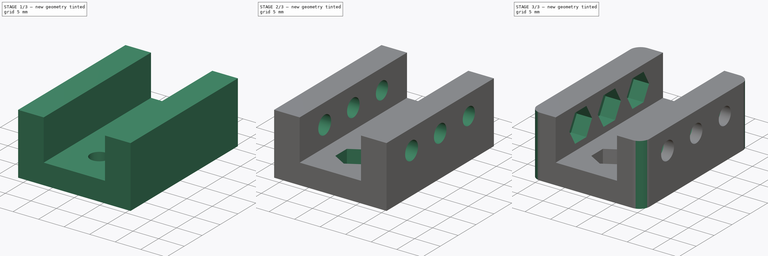
[diagram: build sequence overview — one tinted view per stage of 3, left to right]
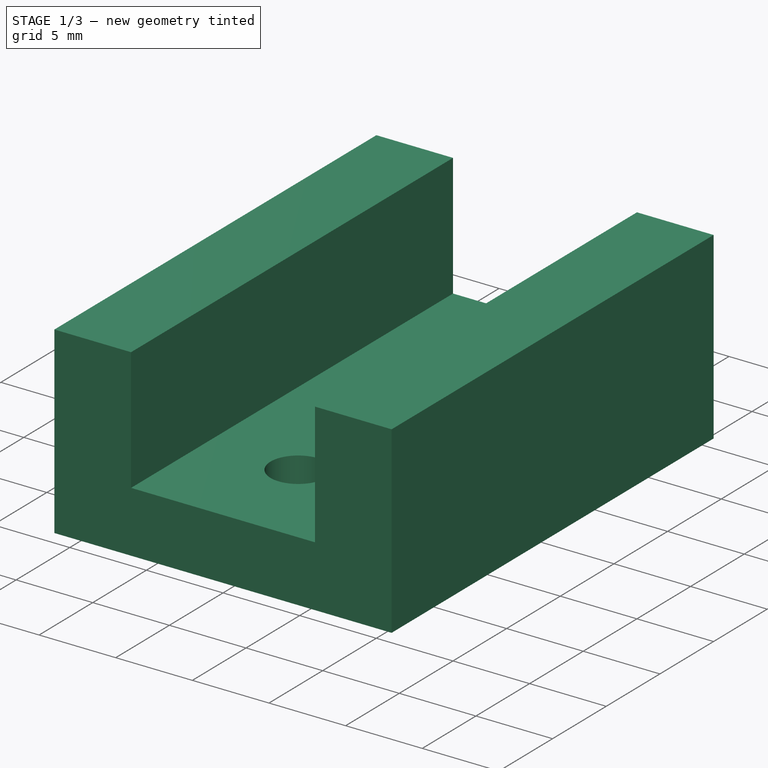
[diagram: stage 1 of 3 — iso view after this stage's code; geometry added in this stage tinted green]
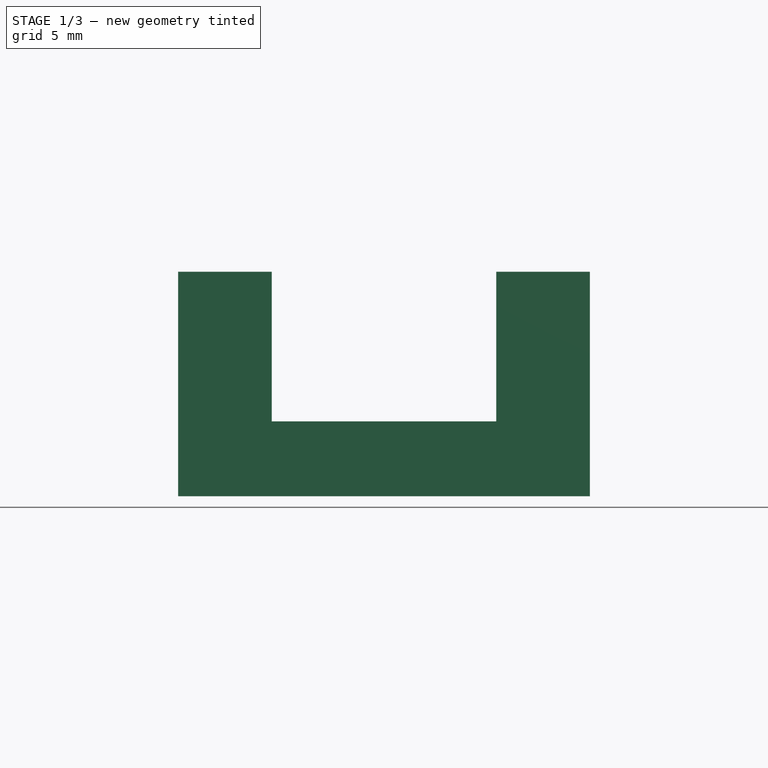
[diagram: stage 1 of 3 — front view after this stage's code; geometry added in this stage tinted green]
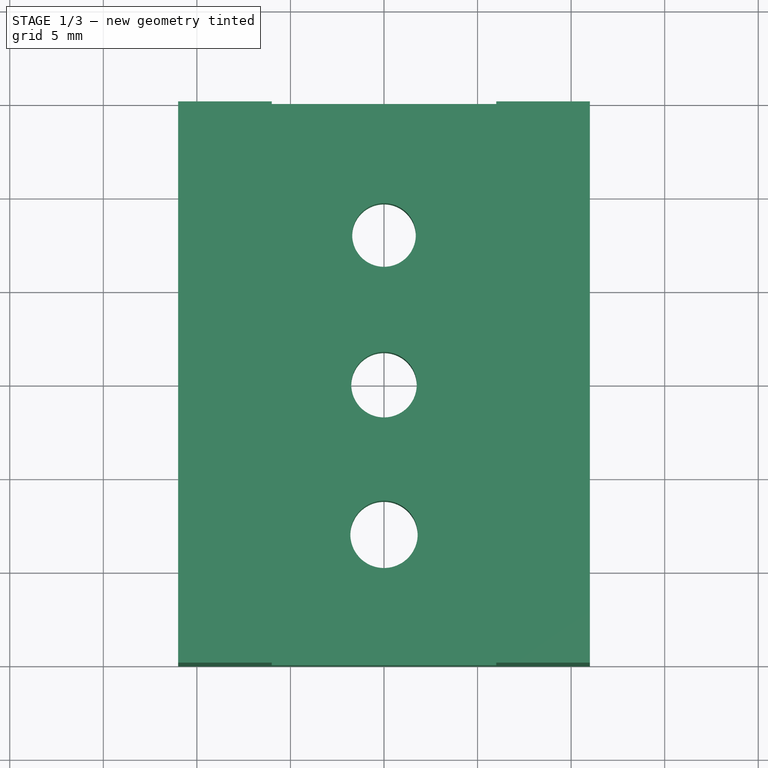
[diagram: stage 1 of 3 — top view after this stage's code; geometry added in this stage tinted green]
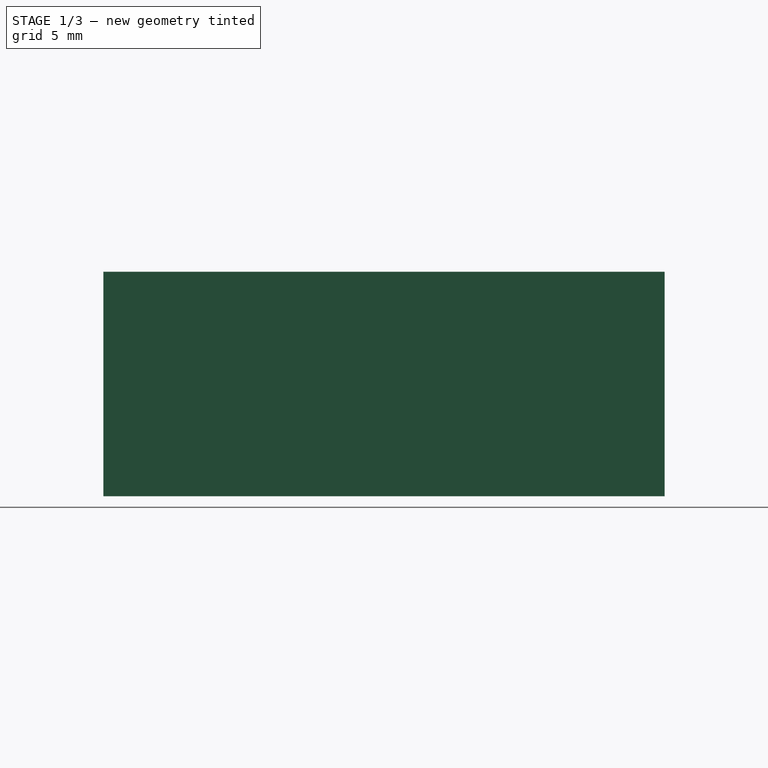
[diagram: stage 1 of 3 — right view after this stage's code; geometry added in this stage tinted green]
FCSTD DOCUMENT  (FreeCAD 0.19R24291 (Git))
Label: HexFaceTest
License: All rights reserved
LicenseURL: http://en.wikipedia.org/wiki/All_rights_reserved
objects: Sketcher::SketchObject×7, PartDesign::Pocket×6, PartDesign::Pad×1, Spreadsheet::Sheet×1, PartDesign::Fillet×1, PartDesign::Body×1
note: 24 computed .brp shape members not serialized (recipe doc carries the construction recipe); baked Part::Feature solids carry a one-line shape summary decoded from their .brp

FEATURE [Sketcher::SketchObject] Sketch
  FullyConstrained = true
  MapMode = 5
  Support = -> [XY_Plane]
  sketch-geometry (4):
    g0: LineSegment StartX=-11 StartY=15 StartZ=0 EndX=11 EndY=15 EndZ=0
    g1: LineSegment StartX=11 StartY=15 StartZ=0 EndX=11 EndY=-15 EndZ=0
    g2: LineSegment StartX=11 StartY=-15 StartZ=0 EndX=-11 EndY=-15 EndZ=0
    g3: LineSegment StartX=-11 StartY=-15 StartZ=0 EndX=-11 EndY=15 EndZ=0
  constraints (11):
    c: Coincident(g0,g1)
    c: Coincident(g1,g2)
    c: Coincident(g2,g3)
    c: Coincident(g3,g0)
    c: Horizontal(g0)
    c: Horizontal(g2)
    c: Vertical(g1)
    c: Vertical(g3)
    c: Symmetric(g0,g1,g-1)
    c: Distance(g2) = 22
    c: Distance(g3) = 30
FEATURE [PartDesign::Pad] Pad
  Direction = (1,1,1)
  Length = 12
  Length2 = 100
  Profile = -> Sketch
  Type = 0
FEATURE [Sketcher::SketchObject] Sketch001
  FullyConstrained = true
  Placement = pos=(0,-15,0) rot=(1,0,0;1.5708rad)
  sketch-geometry (5):
    g0: LineSegment StartX=-6 StartY=12 StartZ=0 EndX=6 EndY=12 EndZ=0
    g1: LineSegment StartX=6 StartY=12 StartZ=0 EndX=6 EndY=4 EndZ=0
    g2: LineSegment StartX=6 StartY=4 StartZ=0 EndX=-6 EndY=4 EndZ=0
    g3: LineSegment StartX=-6 StartY=4 StartZ=0 EndX=-6 EndY=12 EndZ=0
    g4: GeomPoint X=0 Y=4 Z=0
  constraints (13):
    c: Coincident(g0,g1)
    c: Coincident(g1,g2)
    c: Coincident(g2,g3)
    c: Coincident(g3,g0)
    c: Horizontal(g0)
    c: Horizontal(g2)
    c: Vertical(g1)
    c: Vertical(g3)
    c: PointOnObject(g4,g-2)
    c: Symmetric(g2,g1,g4)
    c: DistanceY(g4) = 4
    c: Distance(g3) = 8
    c: Distance(g0) = 12
FEATURE [Sketcher::SketchObject] Sketch002
  FullyConstrained = true
  Placement = pos=(0,9e-16,4) rot=(0,0,1;0rad)
  expr: Constraints[5] = Spreadsheet.h2
  expr: Constraints[6] = Spreadsheet.h3
  expr: Constraints[4] = Spreadsheet.h1
  sketch-geometry (3):
    g0: Circle CenterX=0 CenterY=4e-16 CenterZ=0 NormalX=0 NormalY=0 NormalZ=1 AngleXU=0 Radius=1.75
    g1: Circle CenterX=0 CenterY=8 CenterZ=0 NormalX=0 NormalY=0 NormalZ=1 AngleXU=0 Radius=1.7
    g2: Circle CenterX=0 CenterY=-8 CenterZ=0 NormalX=0 NormalY=0 NormalZ=1 AngleXU=0 Radius=1.8
  constraints (7):
    c: Coincident(g0,g-1)
    c: PointOnObject(g2,g-2)
    c: Symmetric(g1,g2,g0)
    c: DistanceY(g1) = 8
    c: Radius(g1) = 1.7
    c: Radius(g0) = 1.75
    c: Radius(g2) = 1.8
FEATURE [Sketcher::SketchObject] Sketch003
  FullyConstrained = true
  Placement = pos=(12,0,0) rot=(0.57735,0.57735,0.57735;2.0944rad)
  expr: Constraints[9] = Spreadsheet.h3
  expr: Constraints[8] = Spreadsheet.h2
  expr: Constraints[1] = Spreadsheet.h1
  sketch-geometry (4):
    g0: Circle CenterX=0 CenterY=8 CenterZ=0 NormalX=0 NormalY=0 NormalZ=1 AngleXU=0 Radius=1.75
    g1: Circle CenterX=8 CenterY=8 CenterZ=0 NormalX=0 NormalY=0 NormalZ=1 AngleXU=0 Radius=1.7
    g2: Circle CenterX=-8 CenterY=8 CenterZ=0 NormalX=0 NormalY=0 NormalZ=1 AngleXU=0 Radius=1.8
    g3: LineSegment StartX=-8 StartY=8 StartZ=0 EndX=0 EndY=8 EndZ=0
  constraints (10):
    c: Symmetric(g1,g2,g0)
    c: Radius(g1) = 1.7
    c: PointOnObject(g0,g-2)
    c: Coincident(g3,g2)
    c: Coincident(g3,g0)
    c: Horizontal(g3)
    c: DistanceY(g0) = 8
    c: Distance(g3) = 8
    c: Radius(g0) = 1.75
    c: Radius(g2) = 1.8
FEATURE [Sketcher::SketchObject] Sketch005
  FullyConstrained = true
  Placement = pos=(0,9e-16,4) rot=(0,0,1;0rad)
  expr: Constraints[57] = Spreadsheet.s1
  expr: Constraints[56] = Spreadsheet.s2
  expr: Constraints[55] = Spreadsheet.s3
  sketch-geometry (23):
    g0: LineSegment StartX=2.7 StartY=6.44115 StartZ=0 EndX=2.7 EndY=9.55885 EndZ=0
    g1: LineSegment StartX=2.7 StartY=9.55885 StartZ=0 EndX=-1.8421e-12 EndY=11.1177 EndZ=0
    g2: LineSegment StartX=-1.8421e-12 StartY=11.1177 StartZ=0 EndX=-2.7 EndY=9.55885 EndZ=0
    g3: LineSegment StartX=-2.7 StartY=9.55885 StartZ=0 EndX=-2.7 EndY=6.44115 EndZ=0
    g4: LineSegment StartX=-2.7 StartY=6.44115 StartZ=0 EndX=-7.621e-13 EndY=4.88231 EndZ=0
    g5: LineSegment StartX=-7.621e-13 StartY=4.88231 StartZ=0 EndX=2.7 EndY=6.44115 EndZ=0
    g6: Circle CenterX=0 CenterY=8 CenterZ=0 NormalX=0 NormalY=0 NormalZ=1 AngleXU=0 Radius=3.11769
    g7: LineSegment StartX=2.75 StartY=-1.58771 StartZ=0 EndX=2.75 EndY=1.58771 EndZ=0
    g8: LineSegment StartX=2.75 StartY=1.58771 StartZ=0 EndX=-1.4229e-12 EndY=3.17543 EndZ=0
    g9: LineSegment StartX=-1.4229e-12 StartY=3.17543 StartZ=0 EndX=-2.75 EndY=1.58771 EndZ=0
    g10: LineSegment StartX=-2.75 StartY=1.58771 StartZ=0 EndX=-2.75 EndY=-1.58771 EndZ=0
    g11: LineSegment StartX=-2.75 StartY=-1.58771 StartZ=0 EndX=-1.4224e-12 EndY=-3.17543 EndZ=0
    g12: LineSegment StartX=-1.4224e-12 StartY=-3.17543 StartZ=0 EndX=2.75 EndY=-1.58771 EndZ=0
    g13: Circle CenterX=0 CenterY=0 CenterZ=0 NormalX=0 NormalY=0 NormalZ=1 AngleXU=0 Radius=3.17543
    g14: LineSegment StartX=2.8 StartY=-9.61658 StartZ=0 EndX=2.8 EndY=-6.38342 EndZ=0
    g15: LineSegment StartX=2.8 StartY=-6.38342 StartZ=0 EndX=6.62e-14 EndY=-4.76684 EndZ=0
    g16: LineSegment StartX=6.62e-14 StartY=-4.76684 StartZ=0 EndX=-2.8 EndY=-6.38342 EndZ=0
    g17: LineSegment StartX=-2.8 StartY=-6.38342 StartZ=0 EndX=-2.8 EndY=-9.61658 EndZ=0
    g18: LineSegment StartX=-2.8 StartY=-9.61658 StartZ=0 EndX=-6.66e-14 EndY=-11.2332 EndZ=0
    g19: LineSegment StartX=-6.66e-14 StartY=-11.2332 StartZ=0 EndX=2.8 EndY=-9.61658 EndZ=0
    g20: Circle CenterX=0 CenterY=-8 CenterZ=0 NormalX=0 NormalY=0 NormalZ=1 AngleXU=0 Radius=3.23316
    g21: LineSegment StartX=0 StartY=0 StartZ=0 EndX=0 EndY=8 EndZ=0
    g22: LineSegment StartX=0 StartY=0 StartZ=0 EndX=0 EndY=-8 EndZ=0
  constraints (54):
    c: Coincident(g0,g1)
    c: Coincident(g1,g2)
    c: Coincident(g2,g3)
    c: Coincident(g3,g4)
    c: Coincident(g4,g5)
    c: Coincident(g5,g0)
    c: Equal(g0, g1-g5) x5
    c: PointOnObject(g0,g6)
    c: PointOnObject(g1,g6)
    c: PointOnObject(g2,g6)
    c: PointOnObject(g3,g6)
    c: PointOnObject(g4,g6)
    c: PointOnObject(g5,g6)
    c: Coincident(g7,g8)
    c: Coincident(g8,g9)
    c: Coincident(g9,g10)
    c: Coincident(g10,g11)
    c: Coincident(g11,g12)
    c: Coincident(g12,g7)
    c: Equal(g7, g8-g12) x5
    c: PointOnObject(g7,g13)
    c: PointOnObject(g8,g13)
    c: PointOnObject(g9,g13)
    c: PointOnObject(g10,g13)
    c: PointOnObject(g11,g13)
    c: PointOnObject(g12,g13)
    c: Coincident(g13,g-1)
    c: Coincident(g14,g15)
    c: Coincident(g15,g16)
    c: Coincident(g16,g17)
    c: Coincident(g17,g18)
    c: Coincident(g18,g19)
    c: Coincident(g19,g14)
    c: Equal(g14, g15-g19) x5
    c: PointOnObject(g14,g20)
    c: PointOnObject(g15,g20)
    c: PointOnObject(g16,g20)
    c: PointOnObject(g17,g20)
    c: PointOnObject(g18,g20)
    c: PointOnObject(g19,g20)
    c: Vertical(g17)
    c: Vertical(g10)
    c: Vertical(g3)
    c: DistanceX(g17,g14) = 5.6
    c: DistanceX(g10,g7) = 5.5
    c: DistanceX(g3,g0) = 5.4
    c: Coincident(g21,g-1)
    c: Coincident(g21,g6)
    c: Vertical(g21)
    c: Coincident(g22,g-1)
    c: Coincident(g22,g20)
    c: Vertical(g22)
    c: Equal(g22,g21)
    c: Distance(g21) = 8
FEATURE [Sketcher::SketchObject] Sketch006
  FullyConstrained = true
  Placement = pos=(6,0,0) rot=(0.57735,-0.57735,-0.57735;2.0944rad)
  expr: Constraints[54] = Spreadsheet.s1
  expr: Constraints[55] = Spreadsheet.s2
  expr: Constraints[56] = Spreadsheet.s3
  sketch-geometry (23):
    g0: LineSegment StartX=-9.55885 StartY=5.3 StartZ=0 EndX=-6.44115 EndY=5.3 EndZ=0
    g1: LineSegment StartX=-6.44115 StartY=5.3 StartZ=0 EndX=-4.88231 EndY=8 EndZ=0
    g2: LineSegment StartX=-4.88231 StartY=8 StartZ=0 EndX=-6.44115 EndY=10.7 EndZ=0
    g3: LineSegment StartX=-6.44115 StartY=10.7 StartZ=0 EndX=-9.55885 EndY=10.7 EndZ=0
    g4: LineSegment StartX=-9.55885 StartY=10.7 StartZ=0 EndX=-11.1177 EndY=8 EndZ=0
    g5: LineSegment StartX=-11.1177 StartY=8 StartZ=0 EndX=-9.55885 EndY=5.3 EndZ=0
    g6: Circle CenterX=-8 CenterY=8 CenterZ=0 NormalX=0 NormalY=0 NormalZ=1 AngleXU=0 Radius=3.11769
    g7: LineSegment StartX=-3.17543 StartY=8 StartZ=0 EndX=-1.58771 EndY=5.25 EndZ=0
    g8: LineSegment StartX=-1.58771 StartY=5.25 StartZ=0 EndX=1.58771 EndY=5.25 EndZ=0
    g9: LineSegment StartX=1.58771 StartY=5.25 StartZ=0 EndX=3.17543 EndY=8 EndZ=0
    g10: LineSegment StartX=3.17543 StartY=8 StartZ=0 EndX=1.58771 EndY=10.75 EndZ=0
    g11: LineSegment StartX=1.58771 StartY=10.75 StartZ=0 EndX=-1.58771 EndY=10.75 EndZ=0
    g12: LineSegment StartX=-1.58771 StartY=10.75 StartZ=0 EndX=-3.17543 EndY=8 EndZ=0
    g13: Circle CenterX=0 CenterY=8 CenterZ=0 NormalX=0 NormalY=0 NormalZ=1 AngleXU=0 Radius=3.17543
    g14: LineSegment StartX=4.76684 StartY=8 StartZ=0 EndX=6.38342 EndY=5.2 EndZ=0
    g15: LineSegment StartX=6.38342 StartY=5.2 StartZ=0 EndX=9.61658 EndY=5.2 EndZ=0
    g16: LineSegment StartX=9.61658 StartY=5.2 StartZ=0 EndX=11.2332 EndY=8 EndZ=0
    g17: LineSegment StartX=11.2332 StartY=8 StartZ=0 EndX=9.61658 EndY=10.8 EndZ=0
    g18: LineSegment StartX=9.61658 StartY=10.8 StartZ=0 EndX=6.38342 EndY=10.8 EndZ=0
    g19: LineSegment StartX=6.38342 StartY=10.8 StartZ=0 EndX=4.76684 EndY=8 EndZ=0
    g20: Circle CenterX=8 CenterY=8 CenterZ=0 NormalX=0 NormalY=0 NormalZ=1 AngleXU=0 Radius=3.23316
    g21: LineSegment StartX=-8 StartY=8 StartZ=0 EndX=0 EndY=8 EndZ=0
    g22: LineSegment StartX=0 StartY=8 StartZ=0 EndX=8 EndY=8 EndZ=0
  constraints (55):
    c: Coincident(g0,g1)
    c: Coincident(g1,g2)
    c: Coincident(g2,g3)
    c: Coincident(g3,g4)
    c: Coincident(g4,g5)
    c: Coincident(g5,g0)
    c: Equal(g0, g1-g5) x5
    c: PointOnObject(g0,g6)
    c: PointOnObject(g1,g6)
    c: PointOnObject(g2,g6)
    c: PointOnObject(g3,g6)
    c: PointOnObject(g4,g6)
    c: PointOnObject(g5,g6)
    c: Coincident(g7,g8)
    c: Coincident(g8,g9)
    c: Coincident(g9,g10)
    c: Coincident(g10,g11)
    c: Coincident(g11,g12)
    c: Coincident(g12,g7)
    c: Equal(g7, g8-g12) x5
    c: PointOnObject(g7,g13)
    c: PointOnObject(g8,g13)
    c: PointOnObject(g9,g13)
    c: PointOnObject(g10,g13)
    c: PointOnObject(g11,g13)
    c: PointOnObject(g12,g13)
    c: Coincident(g14,g15)
    c: Coincident(g15,g16)
    c: Coincident(g16,g17)
    c: Coincident(g17,g18)
    c: Coincident(g18,g19)
    c: Coincident(g19,g14)
    c: Equal(g14, g15-g19) x5
    c: PointOnObject(g14,g20)
    c: PointOnObject(g15,g20)
    c: PointOnObject(g16,g20)
    c: PointOnObject(g17,g20)
    c: PointOnObject(g18,g20)
    c: PointOnObject(g19,g20)
    c: Horizontal(g3)
    c: Horizontal(g11)
    c: Horizontal(g18)
    c: DistanceY(g0,g3) = 5.4
    c: DistanceY(g7,g11) = 5.5
    c: DistanceY(g14,g18) = 5.6
    c: Coincident(g21,g6)
    c: Coincident(g21,g13)
    c: Horizontal(g21)
    c: Coincident(g22,g13)
    c: Coincident(g22,g20)
    c: Horizontal(g22)
    c: Equal(g22,g21)
    c: PointOnObject(g13,g-2)
    c: Distance(g22) = 8
    c: DistanceY(g13) = 8
FEATURE [Sketcher::SketchObject] Sketch007
  FullyConstrained = true
  Placement = pos=(-6,0,0) rot=(0.57735,0.57735,0.57735;2.0944rad)
  expr: Constraints[54] = Spreadsheet.s3
  expr: Constraints[55] = Spreadsheet.s2
  expr: Constraints[56] = Spreadsheet.s1
  sketch-geometry (23):
    g0: LineSegment StartX=3.23316 StartY=8 StartZ=0 EndX=1.61658 EndY=10.8 EndZ=0
    g1: LineSegment StartX=1.61658 StartY=10.8 StartZ=0 EndX=-1.61658 EndY=10.8 EndZ=0
    g2: LineSegment StartX=-1.61658 StartY=10.8 StartZ=0 EndX=-3.23316 EndY=8 EndZ=0
    g3: LineSegment StartX=-3.23316 StartY=8 StartZ=0 EndX=-1.61658 EndY=5.2 EndZ=0
    g4: LineSegment StartX=-1.61658 StartY=5.2 StartZ=0 EndX=1.61658 EndY=5.2 EndZ=0
    g5: LineSegment StartX=1.61658 StartY=5.2 StartZ=0 EndX=3.23316 EndY=8 EndZ=0
    g6: Circle CenterX=0 CenterY=8 CenterZ=0 NormalX=0 NormalY=0 NormalZ=1 AngleXU=0 Radius=3.23316
    g7: LineSegment StartX=-4.82457 StartY=8 StartZ=0 EndX=-6.41229 EndY=10.75 EndZ=0
    g8: LineSegment StartX=-6.41229 StartY=10.75 StartZ=0 EndX=-9.58771 EndY=10.75 EndZ=0
    g9: LineSegment StartX=-9.58771 StartY=10.75 StartZ=0 EndX=-11.1754 EndY=8 EndZ=0
    g10: LineSegment StartX=-11.1754 StartY=8 StartZ=0 EndX=-9.58771 EndY=5.25 EndZ=0
    g11: LineSegment StartX=-9.58771 StartY=5.25 StartZ=0 EndX=-6.41229 EndY=5.25 EndZ=0
    g12: LineSegment StartX=-6.41229 StartY=5.25 StartZ=0 EndX=-4.82457 EndY=8 EndZ=0
    g13: Circle CenterX=-8 CenterY=8 CenterZ=0 NormalX=0 NormalY=0 NormalZ=1 AngleXU=0 Radius=3.17543
    g14: LineSegment StartX=11.1177 StartY=8 StartZ=0 EndX=9.55885 EndY=10.7 EndZ=0
    g15: LineSegment StartX=9.55885 StartY=10.7 StartZ=0 EndX=6.44115 EndY=10.7 EndZ=0
    g16: LineSegment StartX=6.44115 StartY=10.7 StartZ=0 EndX=4.88231 EndY=8 EndZ=0
    g17: LineSegment StartX=4.88231 StartY=8 StartZ=0 EndX=6.44115 EndY=5.3 EndZ=0
    g18: LineSegment StartX=6.44115 StartY=5.3 StartZ=0 EndX=9.55885 EndY=5.3 EndZ=0
    g19: LineSegment StartX=9.55885 StartY=5.3 StartZ=0 EndX=11.1177 EndY=8 EndZ=0
    g20: Circle CenterX=8 CenterY=8 CenterZ=0 NormalX=0 NormalY=0 NormalZ=1 AngleXU=0 Radius=3.11769
    g21: LineSegment StartX=-8 StartY=8 StartZ=0 EndX=0 EndY=8 EndZ=0
    g22: LineSegment StartX=0 StartY=8 StartZ=0 EndX=8 EndY=8 EndZ=0
  constraints (55):
    c: Coincident(g0,g1)
    c: Coincident(g1,g2)
    c: Coincident(g2,g3)
    c: Coincident(g3,g4)
    c: Coincident(g4,g5)
    c: Coincident(g5,g0)
    c: Equal(g0, g1-g5) x5
    c: PointOnObject(g0,g6)
    c: PointOnObject(g1,g6)
    c: PointOnObject(g2,g6)
    c: PointOnObject(g3,g6)
    c: PointOnObject(g4,g6)
    c: PointOnObject(g5,g6)
    c: Coincident(g7,g8)
    c: Coincident(g8,g9)
    c: Coincident(g9,g10)
    c: Coincident(g10,g11)
    c: Coincident(g11,g12)
    c: Coincident(g12,g7)
    c: Equal(g7, g8-g12) x5
    c: PointOnObject(g7,g13)
    c: PointOnObject(g8,g13)
    c: PointOnObject(g9,g13)
    c: PointOnObject(g10,g13)
    c: PointOnObject(g11,g13)
    c: PointOnObject(g12,g13)
    c: Coincident(g14,g15)
    c: Coincident(g15,g16)
    c: Coincident(g16,g17)
    c: Coincident(g17,g18)
    c: Coincident(g18,g19)
    c: Coincident(g19,g14)
    c: Equal(g14, g15-g19) x5
    c: PointOnObject(g14,g20)
    c: PointOnObject(g15,g20)
    c: PointOnObject(g16,g20)
    c: PointOnObject(g17,g20)
    c: PointOnObject(g18,g20)
    c: PointOnObject(g19,g20)
    c: Horizontal(g15)
    c: Horizontal(g8)
    c: Horizontal(g1)
    c: DistanceY(g3,g1) = 5.6
    c: DistanceY(g10,g8) = 5.5
    c: DistanceY(g17,g15) = 5.4
    c: Coincident(g21,g13)
    c: Coincident(g21,g6)
    c: Horizontal(g21)
    c: Coincident(g22,g6)
    c: Coincident(g22,g20)
    c: Horizontal(g22)
    c: PointOnObject(g6,g-2)
    c: DistanceY(g6) = 8
    c: Equal(g22,g21)
    c: Distance(g22) = 8
FEATURE [Spreadsheet::Sheet] Spreadsheet
  cells = A1=s1; B1(s1)=5.4; A2=s2; B2(s2)=5.5; A3=s3; B3(s3)=5.6; A5=h1; B5(h1)=1.7; A6=h2; B6(h2)=1.75; A7=h3; B7(h3)=1.8
FEATURE [PartDesign::Pocket] Pocket
  BaseFeature = -> Pad
  Length = 5
  Length2 = 100
  Profile = -> Sketch001
  Type = 1
FEATURE [PartDesign::Pocket] Pocket001
  BaseFeature = -> Pocket
  Length = 5
  Length2 = 100
  Profile = -> Sketch002
  Type = 0
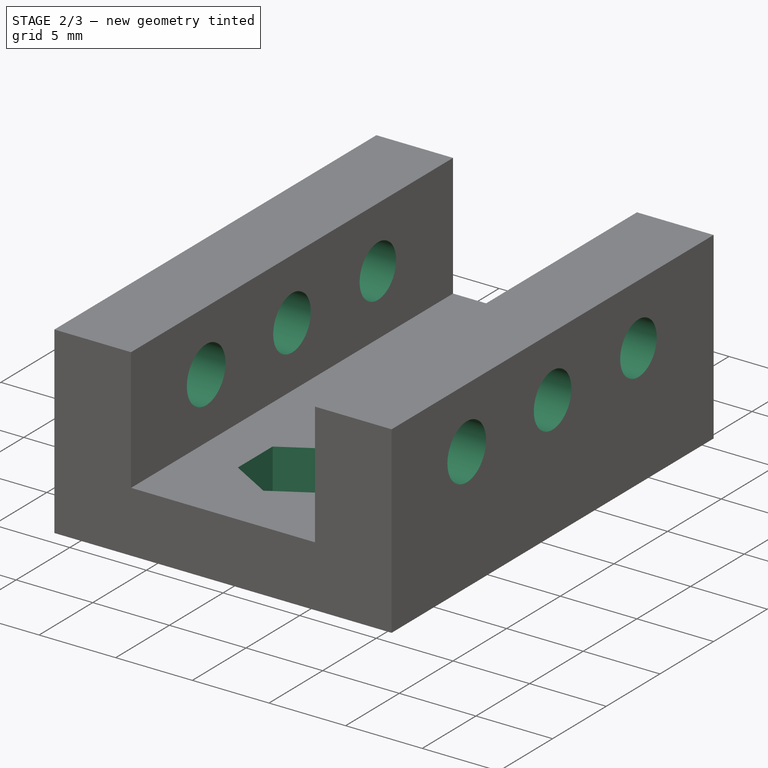
[diagram: stage 2 of 3 — iso view after this stage's code; geometry added in this stage tinted green]
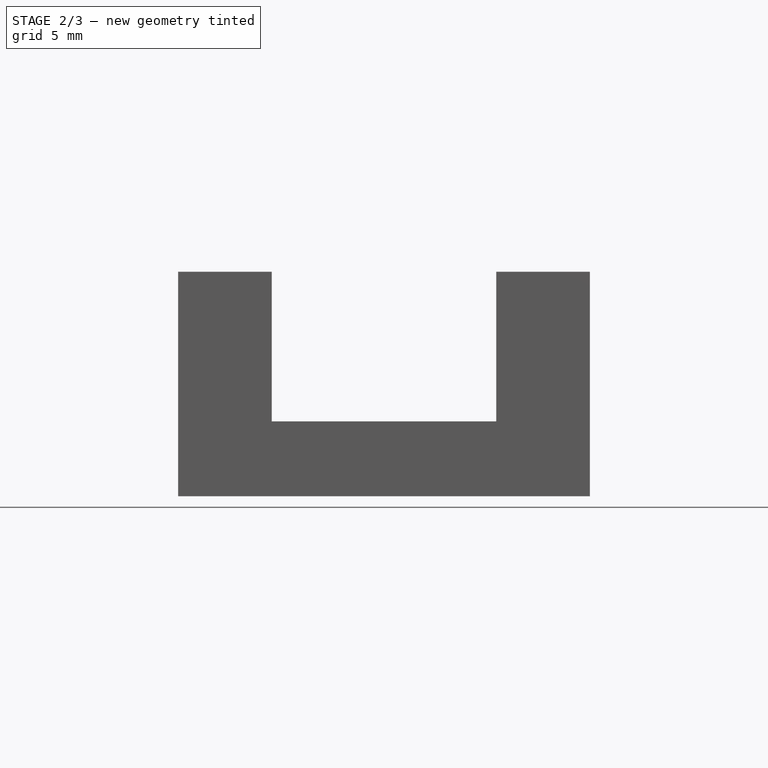
[diagram: stage 2 of 3 — front view after this stage's code; geometry added in this stage tinted green]
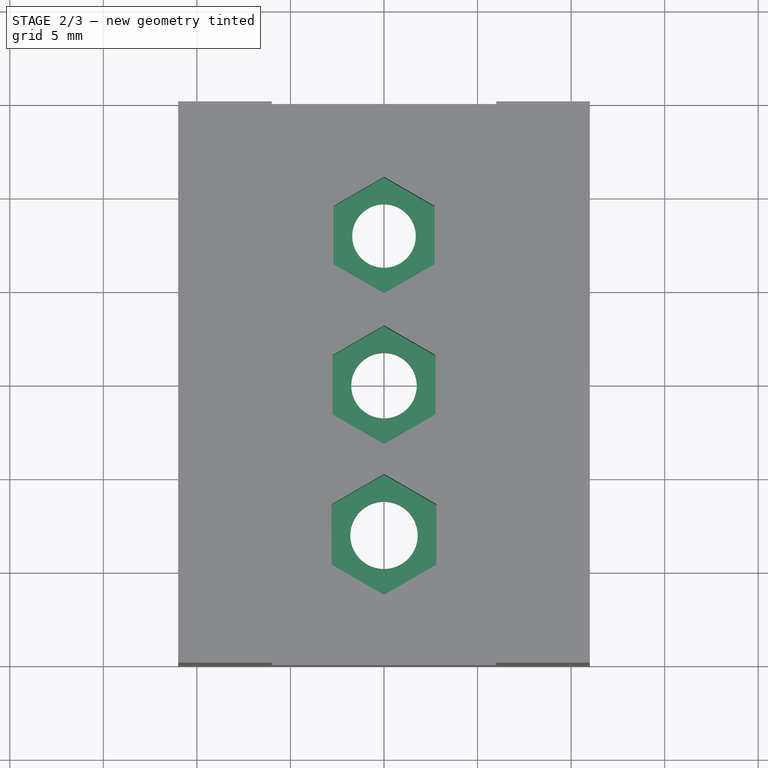
[diagram: stage 2 of 3 — top view after this stage's code; geometry added in this stage tinted green]
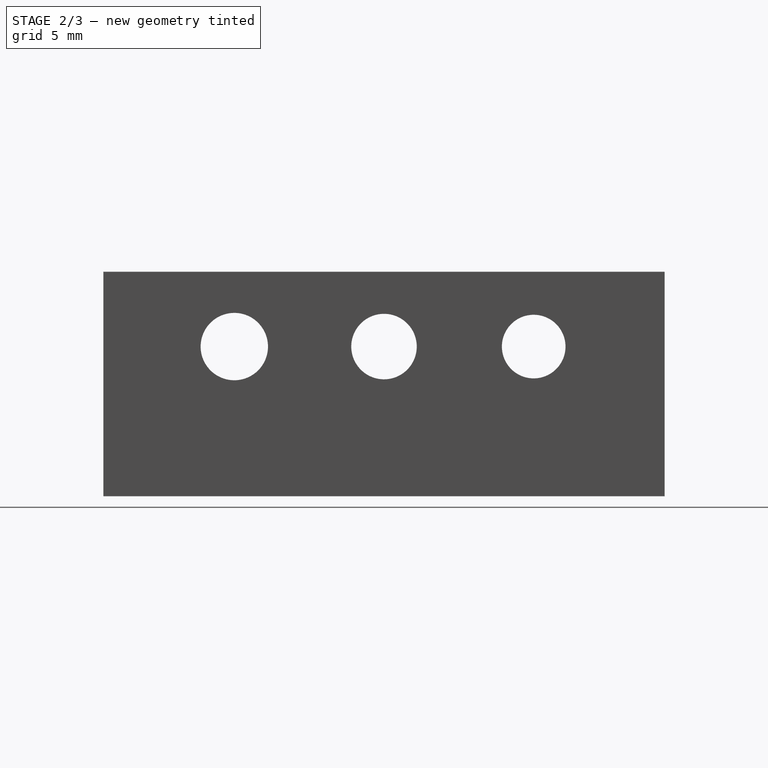
[diagram: stage 2 of 3 — right view after this stage's code; geometry added in this stage tinted green]
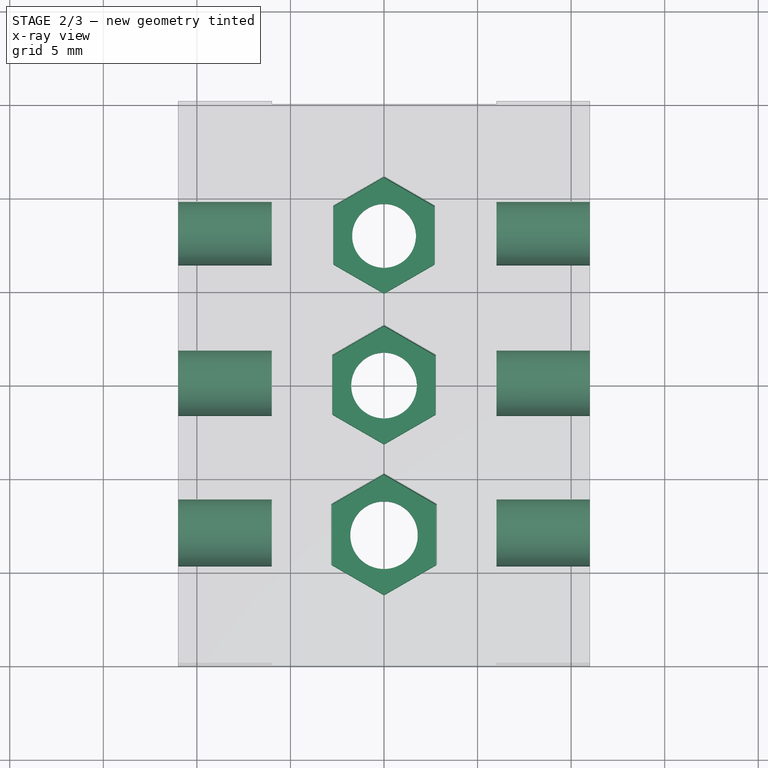
[diagram: stage 2 of 3 — x-ray composite at the top view; earlier geometry ghosted, this stage's added geometry solid]
FEATURE [PartDesign::Pocket] Pocket002
  BaseFeature = -> Pocket001
  Length = 5
  Length2 = 100
  Profile = -> Sketch003
  Type = 1
FEATURE [PartDesign::Pocket] Pocket003
  BaseFeature = -> Pocket002
  Length = 3
  Length2 = 100
  Profile = -> Sketch005
  Type = 0
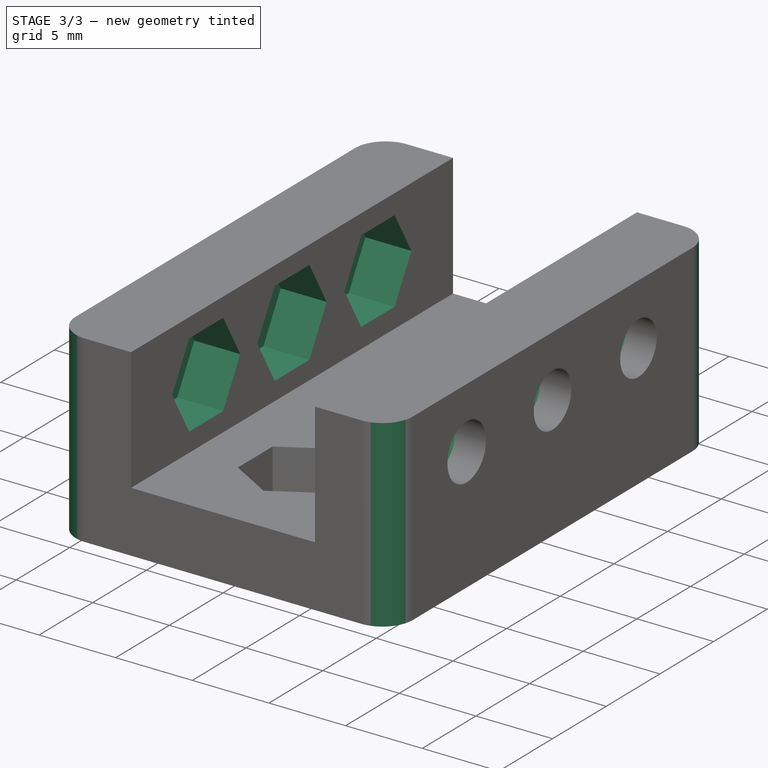
[diagram: stage 3 of 3 — iso view after this stage's code; geometry added in this stage tinted green]
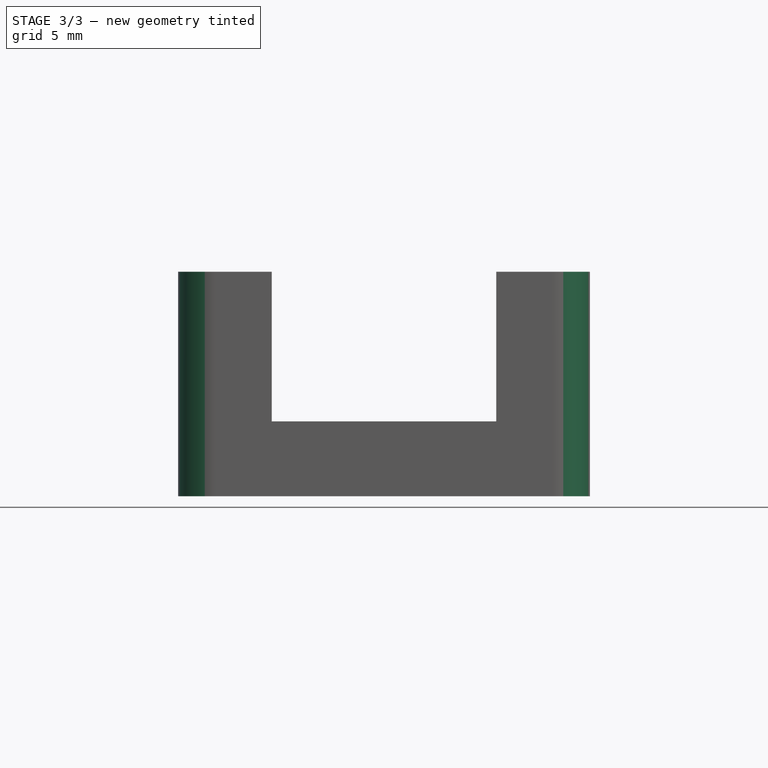
[diagram: stage 3 of 3 — front view after this stage's code; geometry added in this stage tinted green]
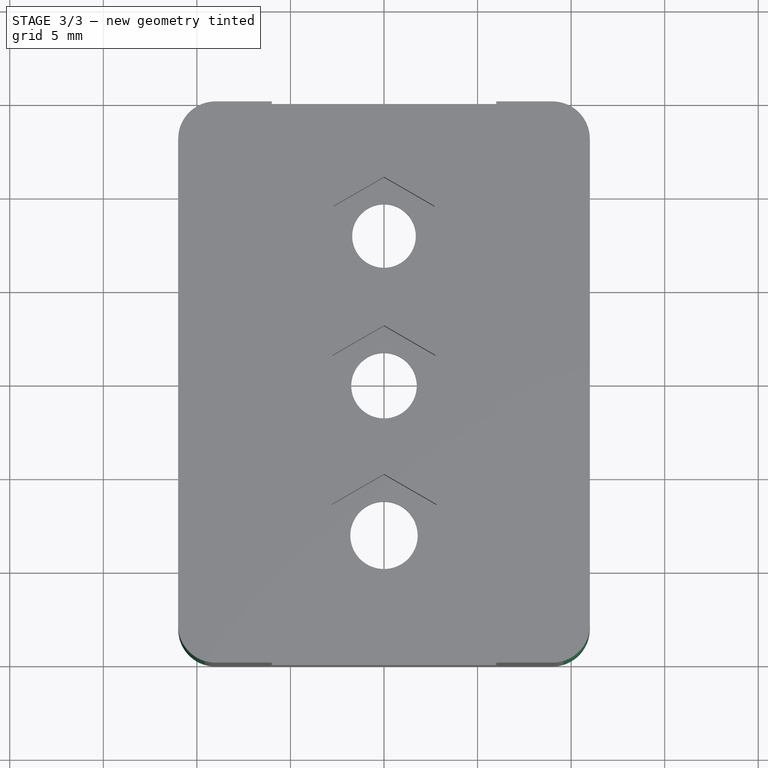
[diagram: stage 3 of 3 — top view after this stage's code; geometry added in this stage tinted green]
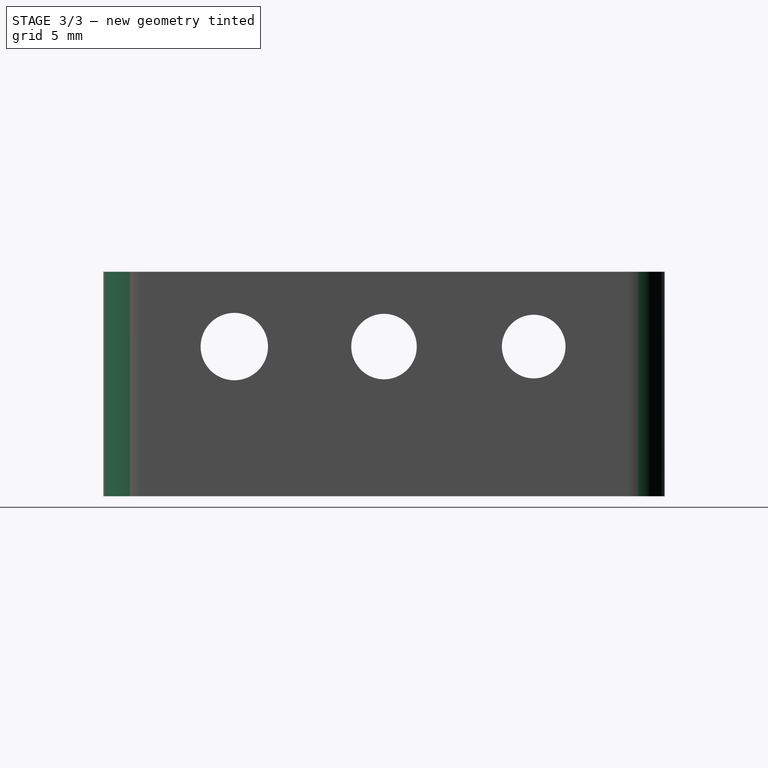
[diagram: stage 3 of 3 — right view after this stage's code; geometry added in this stage tinted green]
FEATURE [PartDesign::Pocket] Pocket004
  BaseFeature = -> Pocket003
  Length = 3
  Length2 = 100
  Profile = -> Sketch006
  Type = 0
FEATURE [PartDesign::Pocket] Pocket005
  BaseFeature = -> Pocket004
  Length = 3
  Length2 = 100
  Profile = -> Sketch007
  Type = 0
FEATURE [PartDesign::Fillet] Fillet
  Base = -> Pocket005 [Edge84,Edge16,Edge2,Edge8]
  BaseFeature = -> Pocket005
  Radius = 2
  SupportTransform = false
FEATURE [PartDesign::Body] Body
  Group = -> [Sketch,Pad,Sketch001,Sketch002,Sketch003,Sketch005,Sketch006,Sketch007,Pocket,Pocket001,Pocket002,Pocket003,Pocket004,Pocket005,Fillet]
  Origin = -> Origin
  Tip = -> Fillet
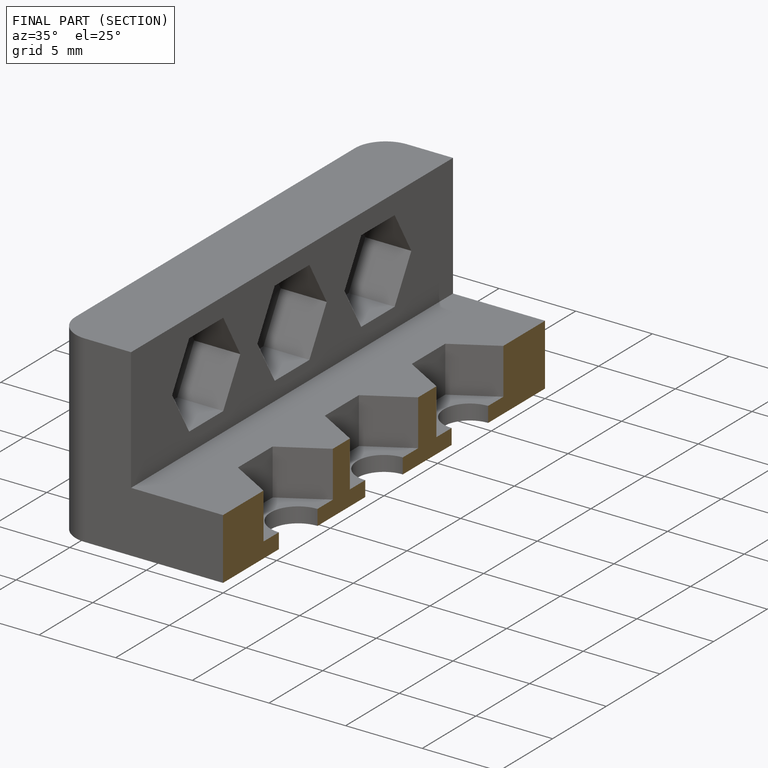
[diagram: finished part — half-section view (interior)]
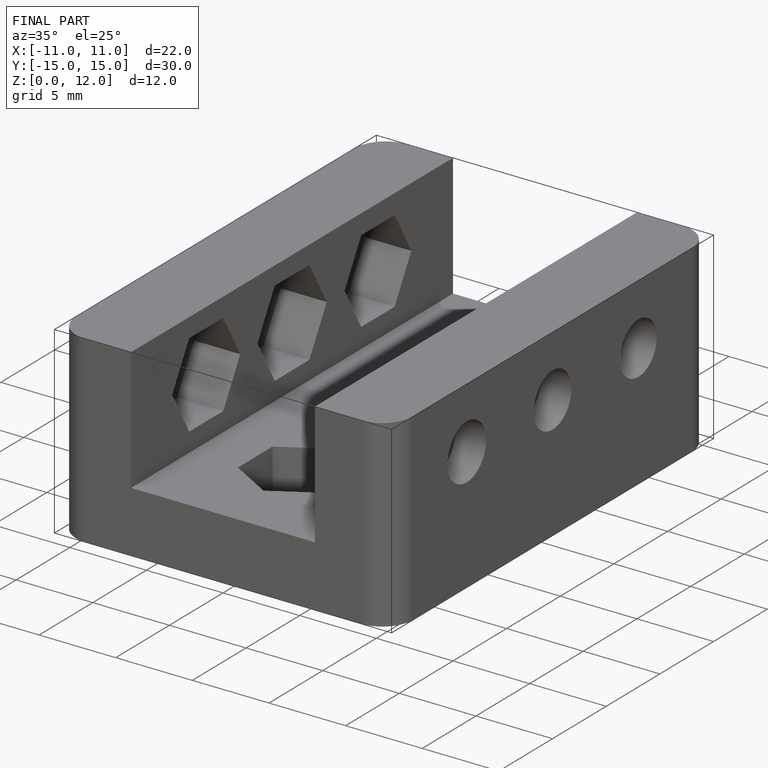
[diagram: finished part — iso view with bounding-box wireframe]
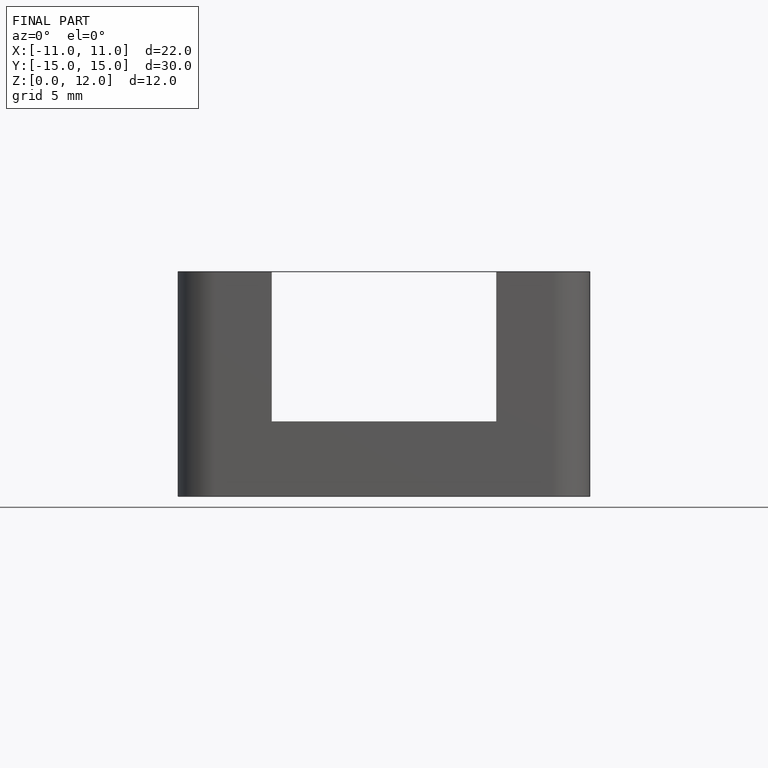
[diagram: finished part — front view with bounding-box wireframe]
